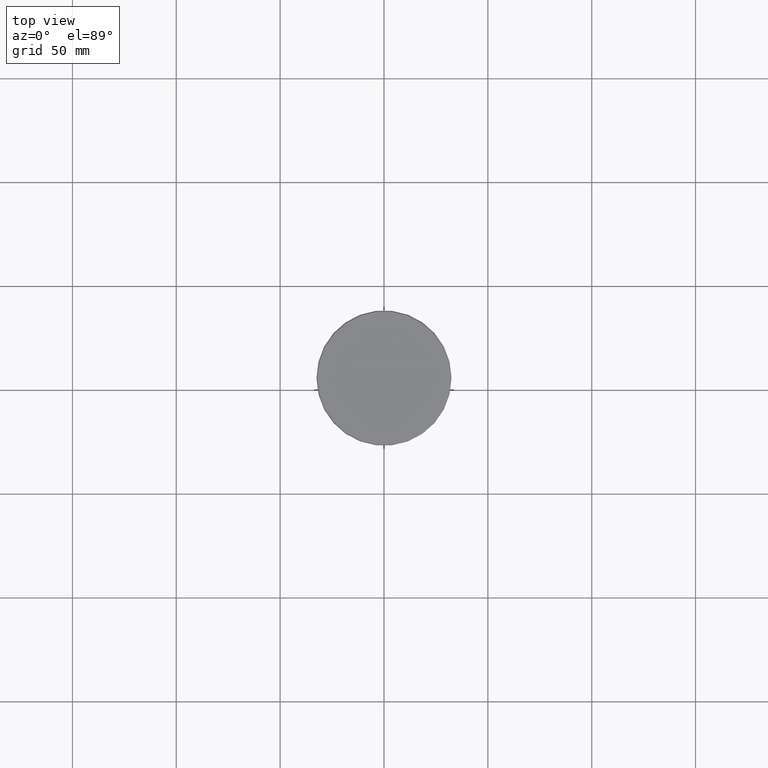
[diagram: clean part render]
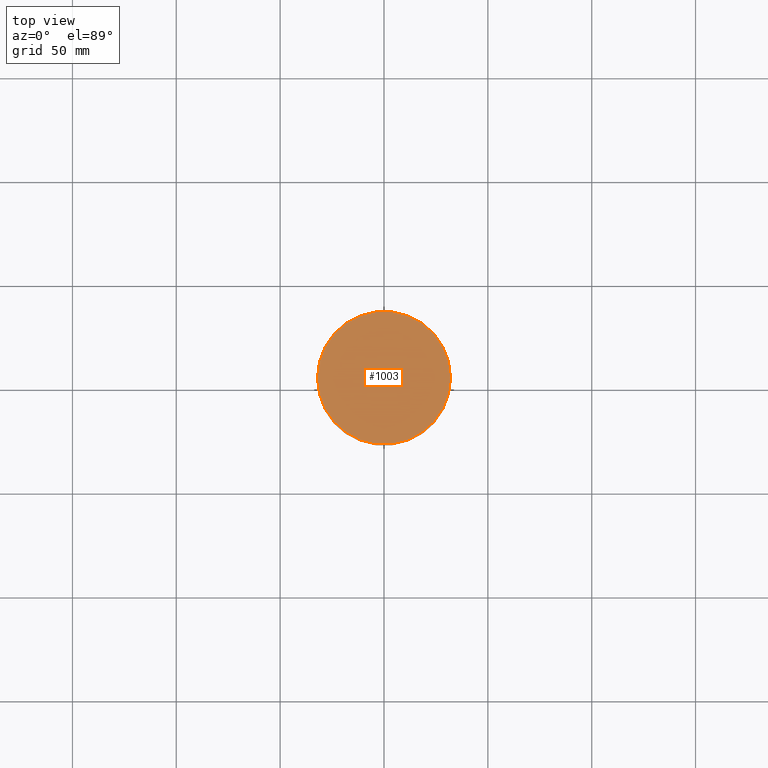
[diagram: same view with one face highlighted and labeled with its STEP entity id]
A machine part, top view. The second image highlights one B-rep face of the part: STEP entity #1003.
In plain terms, the highlighted planar face has unit normal (0, -0, 1).
Its self-contained STEP definition (entity closure, byte-faithful):
#33 = PLANE ( 'NONE',  #722 ) ;
#44 = DIRECTION ( 'NONE',  ( 1.000000000000000000, 0.000000000000000000, 0.000000000000000000 ) ) ;
#55 = CARTESIAN_POINT ( 'NONE',  ( 0.000000000000000000, 0.000000000000000000, 0.000000000000000000 ) ) ;
#157 = DIRECTION ( 'NONE',  ( -0.000000000000000000, -0.000000000000000000, 1.000000000000000000 ) ) ;
#294 = FACE_OUTER_BOUND ( 'NONE', #821, .T. ) ;
#332 = DIRECTION ( 'NONE',  ( 1.000000000000000000, 0.000000000000000000, 0.000000000000000000 ) ) ;
#361 = CIRCLE ( 'NONE', #1030, 31.99999999999994671 ) ;
#395 = DIRECTION ( 'NONE',  ( -0.000000000000000000, -0.000000000000000000, 1.000000000000000000 ) ) ;
#427 = EDGE_CURVE ( 'NONE', #719, #818, #433, .T. ) ;
#433 = CIRCLE ( 'NONE', #1146, 31.99999999999994671 ) ;
#447 = ORIENTED_EDGE ( 'NONE', *, *, #521, .T. ) ;
#521 = EDGE_CURVE ( 'NONE', #818, #719, #361, .T. ) ;
#595 = DIRECTION ( 'NONE',  ( 0.000000000000000000, -0.000000000000000000, 1.000000000000000000 ) ) ;
#706 = CARTESIAN_POINT ( 'NONE',  ( 31.99999999999994671, 3.949485927250211683E-15, 0.000000000000000000 ) ) ;
#719 = VERTEX_POINT ( 'NONE', #706 ) ;
#722 = AXIS2_PLACEMENT_3D ( 'NONE', #776, #595, #857 ) ;
#776 = CARTESIAN_POINT ( 'NONE',  ( 0.000000000000000000, 0.000000000000000000, 0.000000000000000000 ) ) ;
#818 = VERTEX_POINT ( 'NONE', #1173 ) ;
#821 = EDGE_LOOP ( 'NONE', ( #447, #1065 ) ) ;
#857 = DIRECTION ( 'NONE',  ( 1.000000000000000000, 0.000000000000000000, 0.000000000000000000 ) ) ;
#883 = CARTESIAN_POINT ( 'NONE',  ( 0.000000000000000000, 0.000000000000000000, 0.000000000000000000 ) ) ;
#1003 = ADVANCED_FACE ( 'NONE', ( #294 ), #33, .T. ) ;
#1030 = AXIS2_PLACEMENT_3D ( 'NONE', #55, #395, #44 ) ;
#1065 = ORIENTED_EDGE ( 'NONE', *, *, #427, .T. ) ;
#1146 = AXIS2_PLACEMENT_3D ( 'NONE', #883, #157, #332 ) ;
#1173 = CARTESIAN_POINT ( 'NONE',  ( -31.99999999999994671, 0.000000000000000000, 0.000000000000000000 ) ) ;